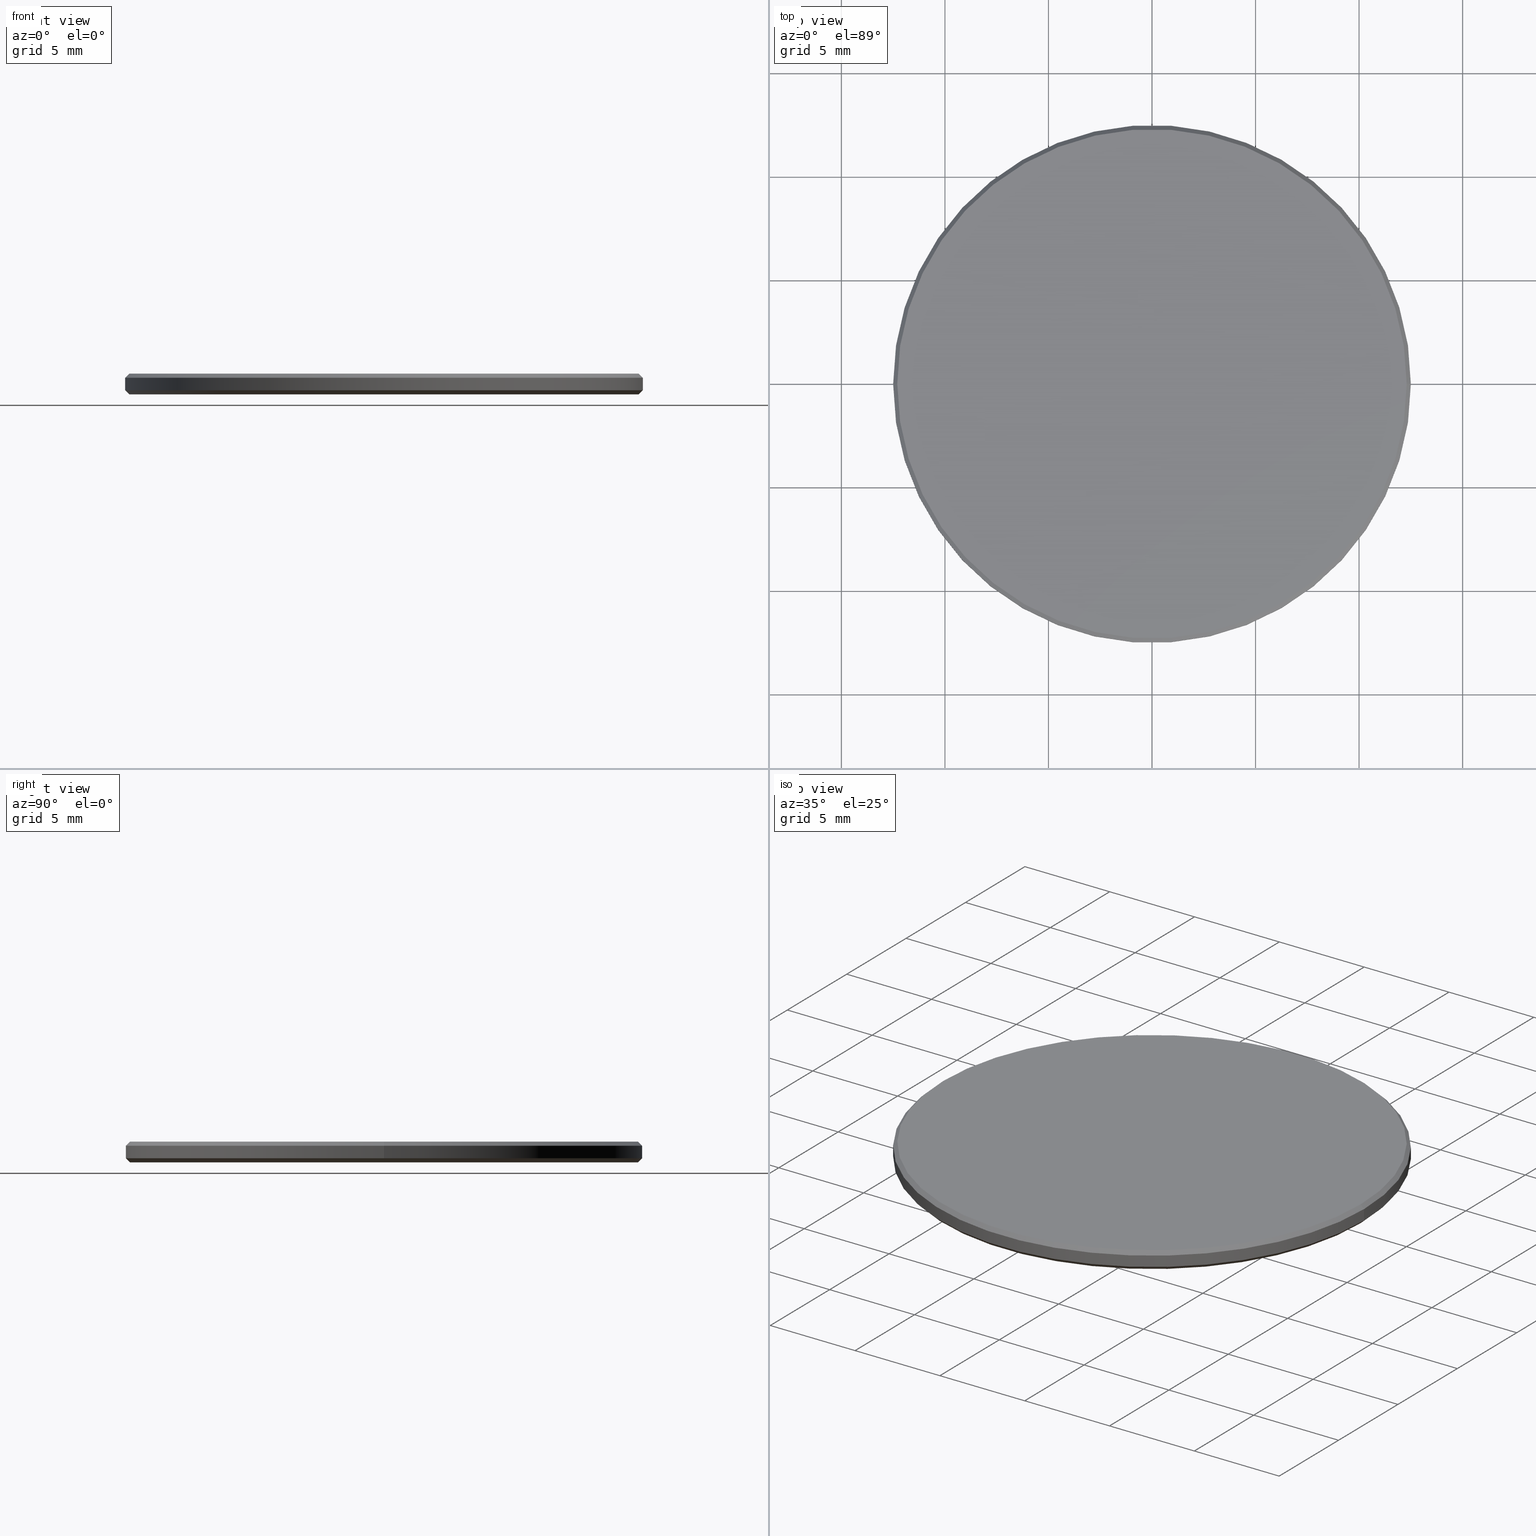
[diagram: canonical four-view strip — front | top / right | iso, engineering-drawing reading convention]
A machine part, canonical four-view strip (front | top / right | iso — engineering-drawing reading convention). The complete STEP part file that produces these views, byte-faithful:
ISO-10303-21;
HEADER;
FILE_DESCRIPTION (( 'STEP AP214' ),
    '1' );
FILE_NAME ('GNIF-140-3330-D25.STEP',
    '2024-07-19T14:32:43',
    ( '' ),
    ( '' ),
    'SwSTEP 2.0',
    'SolidWorks 2022',
    '' );
FILE_SCHEMA (( 'AUTOMOTIVE_DESIGN' ));
ENDSEC;

DATA;
#1 = CARTESIAN_POINT ( 'NONE',  ( 0.000000000000000000, 0.000000000000000000, 1.000000000000000000 ) ) ;
#2 = EDGE_CURVE ( 'NONE', #176, #126, #35, .T. ) ;
#3 = PLANE ( 'NONE',  #231 ) ;
#4 = AXIS2_PLACEMENT_3D ( 'NONE', #43, #168, #136 ) ;
#5 = CARTESIAN_POINT ( 'NONE',  ( 12.50000000000000000, 0.000000000000000000, 0.1999999999999987899 ) ) ;
#6 = ORIENTED_EDGE ( 'NONE', *, *, #207, .T. ) ;
#7 = CARTESIAN_POINT ( 'NONE',  ( -12.50000000000000000, 0.000000000000000000, 0.1999999999999987899 ) ) ;
#8 = ORIENTED_EDGE ( 'NONE', *, *, #204, .F. ) ;
#9 =( LENGTH_UNIT ( ) NAMED_UNIT ( * ) SI_UNIT ( .MILLI., .METRE. ) );
#10 = ORIENTED_EDGE ( 'NONE', *, *, #167, .T. ) ;
#11 = APPLICATION_PROTOCOL_DEFINITION ( 'draft international standard', 'automotive_design', 1998, #95 ) ;
#12 = EDGE_CURVE ( 'NONE', #68, #126, #14, .T. ) ;
#13 = CARTESIAN_POINT ( 'NONE',  ( 12.50000000000000000, 1.530808498934191521E-15, 0.1999999999999987899 ) ) ;
#14 = CIRCLE ( 'NONE', #166, 12.50000000000000000 ) ;
#15 =( GEOMETRIC_REPRESENTATION_CONTEXT ( 3 ) GLOBAL_UNCERTAINTY_ASSIGNED_CONTEXT ( ( #224 ) ) GLOBAL_UNIT_ASSIGNED_CONTEXT ( ( #9, #52, #200 ) ) REPRESENTATION_CONTEXT ( 'NONE', 'WORKASPACE' ) );
#16 = CARTESIAN_POINT ( 'NONE',  ( 0.000000000000000000, 0.000000000000000000, 0.1999999999999987899 ) ) ;
#17 = CARTESIAN_POINT ( 'NONE',  ( 0.000000000000000000, 0.000000000000000000, 0.1999999999999987899 ) ) ;
#18 = CIRCLE ( 'NONE', #163, 12.50000000000000000 ) ;
#19 =( LENGTH_UNIT ( ) NAMED_UNIT ( * ) SI_UNIT ( .MILLI., .METRE. ) );
#20 = PRODUCT_DEFINITION_CONTEXT ( 'detailed design', #95, 'design' ) ;
#21 = DIRECTION ( 'NONE',  ( 1.000000000000000000, 0.000000000000000000, 0.000000000000000000 ) ) ;
#22 = COLOUR_RGB ( '',1.000000000000000000, 1.000000000000000000, 1.000000000000000000 ) ;
#23 = DIRECTION ( 'NONE',  ( -0.000000000000000000, -0.000000000000000000, 1.000000000000000000 ) ) ;
#24 = ORIENTED_EDGE ( 'NONE', *, *, #134, .T. ) ;
#25 = CYLINDRICAL_SURFACE ( 'NONE', #170, 12.50000000000000000 ) ;
#26 = SURFACE_STYLE_USAGE ( .BOTH. , #184 ) ;
#27 = PRODUCT ( 'GNIF-140-3330-D25', 'GNIF-140-3330-D25', '', ( #87 ) ) ;
#28 = ORIENTED_EDGE ( 'NONE', *, *, #31, .T. ) ;
#29 = EDGE_LOOP ( 'NONE', ( #230, #216, #42, #38 ) ) ;
#30 = CARTESIAN_POINT ( 'NONE',  ( 0.000000000000000000, 0.000000000000000000, 0.000000000000000000 ) ) ;
#31 = EDGE_CURVE ( 'NONE', #173, #68, #236, .T. ) ;
#32 = DIRECTION ( 'NONE',  ( -0.7071067811865474617, 8.659560562354932858E-17, 0.7071067811865474617 ) ) ;
#33 = MECHANICAL_DESIGN_GEOMETRIC_PRESENTATION_REPRESENTATION (  '', ( #240 ), #83 ) ;
#34 = ADVANCED_BREP_SHAPE_REPRESENTATION ( 'GNIF-140-3330-D25', ( #64, #150 ), #57 ) ;
#35 = LINE ( 'NONE', #53, #101 ) ;
#36 = DIRECTION ( 'NONE',  ( -0.000000000000000000, -0.000000000000000000, 1.000000000000000000 ) ) ;
#37 = AXIS2_PLACEMENT_3D ( 'NONE', #164, #147, #132 ) ;
#38 = ORIENTED_EDGE ( 'NONE', *, *, #82, .F. ) ;
#39 = DIRECTION ( 'NONE',  ( 1.000000000000000000, 0.000000000000000000, -0.000000000000000000 ) ) ;
#40 = DIRECTION ( 'NONE',  ( 1.000000000000000000, 0.000000000000000000, 0.000000000000000000 ) ) ;
#41 = DIRECTION ( 'NONE',  ( -0.000000000000000000, -0.000000000000000000, -1.000000000000000000 ) ) ;
#42 = ORIENTED_EDGE ( 'NONE', *, *, #204, .T. ) ;
#43 = CARTESIAN_POINT ( 'NONE',  ( 0.000000000000000000, 0.000000000000000000, 0.8000000000000029310 ) ) ;
#44 = AXIS2_PLACEMENT_3D ( 'NONE', #102, #226, #61 ) ;
#45 = ORIENTED_EDGE ( 'NONE', *, *, #114, .F. ) ;
#46 = DIRECTION ( 'NONE',  ( -1.000000000000000000, 0.000000000000000000, 0.000000000000000000 ) ) ;
#47 = ADVANCED_FACE ( 'NONE', ( #218 ), #70, .T. ) ;
#48 = ORIENTED_EDGE ( 'NONE', *, *, #93, .T. ) ;
#49 = DIRECTION ( 'NONE',  ( 1.000000000000000000, 0.000000000000000000, 0.000000000000000000 ) ) ;
#50 =( LENGTH_UNIT ( ) NAMED_UNIT ( * ) SI_UNIT ( .MILLI., .METRE. ) );
#51 = PRESENTATION_STYLE_ASSIGNMENT (( #26 ) ) ;
#52 =( NAMED_UNIT ( * ) PLANE_ANGLE_UNIT ( ) SI_UNIT ( $, .RADIAN. ) );
#53 = CARTESIAN_POINT ( 'NONE',  ( -12.50000000000000000, 1.530808498934191521E-15, 0.1999999999999987899 ) ) ;
#54 = DIRECTION ( 'NONE',  ( 0.000000000000000000, 0.000000000000000000, 1.000000000000000000 ) ) ;
#55 = EDGE_CURVE ( 'NONE', #108, #176, #183, .T. ) ;
#56 = AXIS2_PLACEMENT_3D ( 'NONE', #214, #23, #172 ) ;
#57 =( GEOMETRIC_REPRESENTATION_CONTEXT ( 3 ) GLOBAL_UNCERTAINTY_ASSIGNED_CONTEXT ( ( #116 ) ) GLOBAL_UNIT_ASSIGNED_CONTEXT ( ( #19, #100, #139 ) ) REPRESENTATION_CONTEXT ( 'NONE', 'WORKASPACE' ) );
#58 = CARTESIAN_POINT ( 'NONE',  ( -12.30000000000000249, 1.518562030942718164E-15, 0.000000000000000000 ) ) ;
#59 = CARTESIAN_POINT ( 'NONE',  ( -12.29999999999999893, 0.000000000000000000, 1.000000000000000000 ) ) ;
#60 = ORIENTED_EDGE ( 'NONE', *, *, #181, .F. ) ;
#61 = DIRECTION ( 'NONE',  ( 1.000000000000000000, 0.000000000000000000, 0.000000000000000000 ) ) ;
#62 = AXIS2_PLACEMENT_3D ( 'NONE', #1, #41, #157 ) ;
#63 = ORIENTED_EDGE ( 'NONE', *, *, #73, .F. ) ;
#64 = MANIFOLD_SOLID_BREP ( '����1', #89 ) ;
#65 = DIRECTION ( 'NONE',  ( 0.000000000000000000, 0.000000000000000000, 1.000000000000000000 ) ) ;
#66 = ADVANCED_FACE ( 'NONE', ( #109 ), #112, .F. ) ;
#67 = ORIENTED_EDGE ( 'NONE', *, *, #93, .F. ) ;
#68 = VERTEX_POINT ( 'NONE', #13 ) ;
#69 = CIRCLE ( 'NONE', #44, 12.29999999999999893 ) ;
#70 = CONICAL_SURFACE ( 'NONE', #76, 12.29999999999999893, 0.7853981633974612686 ) ;
#71 = CIRCLE ( 'NONE', #37, 12.50000000000000000 ) ;
#72 = CARTESIAN_POINT ( 'NONE',  ( 0.000000000000000000, 0.000000000000000000, 1.000000000000000000 ) ) ;
#73 = EDGE_CURVE ( 'NONE', #161, #173, #91, .T. ) ;
#74 =( NAMED_UNIT ( * ) PLANE_ANGLE_UNIT ( ) SI_UNIT ( $, .RADIAN. ) );
#75 = ADVANCED_FACE ( 'NONE', ( #199 ), #90, .T. ) ;
#76 = AXIS2_PLACEMENT_3D ( 'NONE', #72, #205, #239 ) ;
#77 = DIRECTION ( 'NONE',  ( 0.7071067811865474617, 0.000000000000000000, 0.7071067811865474617 ) ) ;
#78 = CARTESIAN_POINT ( 'NONE',  ( 12.50000000000000000, 1.530808498934191521E-15, 0.8000000000000029310 ) ) ;
#79 = CARTESIAN_POINT ( 'NONE',  ( 0.000000000000000000, 0.000000000000000000, 1.000000000000000000 ) ) ;
#80 = CARTESIAN_POINT ( 'NONE',  ( 0.000000000000000000, 0.000000000000000000, 0.000000000000000000 ) ) ;
#81 = FACE_OUTER_BOUND ( 'NONE', #105, .T. ) ;
#82 = EDGE_CURVE ( 'NONE', #126, #68, #71, .T. ) ;
#83 =( GEOMETRIC_REPRESENTATION_CONTEXT ( 3 ) GLOBAL_UNCERTAINTY_ASSIGNED_CONTEXT ( ( #179 ) ) GLOBAL_UNIT_ASSIGNED_CONTEXT ( ( #50, #74, #185 ) ) REPRESENTATION_CONTEXT ( 'NONE', 'WORKASPACE' ) );
#84 = ORIENTED_EDGE ( 'NONE', *, *, #12, .T. ) ;
#85 = ORIENTED_EDGE ( 'NONE', *, *, #12, .F. ) ;
#86 = ORIENTED_EDGE ( 'NONE', *, *, #117, .T. ) ;
#87 = PRODUCT_CONTEXT ( 'NONE', #186, 'mechanical' ) ;
#88 = VECTOR ( 'NONE', #77, 1000.000000000000114 ) ;
#89 = CLOSED_SHELL ( 'NONE', ( #160, #47, #130, #215, #237, #66, #99, #75 ) ) ;
#90 = CONICAL_SURFACE ( 'NONE', #171, 12.50000000000000000, 0.7853981633974482790 ) ;
#91 = LINE ( 'NONE', #222, #145 ) ;
#92 = DIRECTION ( 'NONE',  ( -0.000000000000000000, -0.000000000000000000, 1.000000000000000000 ) ) ;
#93 = EDGE_CURVE ( 'NONE', #195, #161, #206, .T. ) ;
#94 = CARTESIAN_POINT ( 'NONE',  ( 12.50000000000000000, 1.530808498934191521E-15, 1.000000000000000000 ) ) ;
#95 = APPLICATION_CONTEXT ( 'automotive_design' ) ;
#96 = DIRECTION ( 'NONE',  ( 1.000000000000000000, 0.000000000000000000, 0.000000000000000000 ) ) ;
#97 = EDGE_LOOP ( 'NONE', ( #120, #6 ) ) ;
#98 = DIRECTION ( 'NONE',  ( 0.000000000000000000, 0.000000000000000000, -1.000000000000000000 ) ) ;
#99 = ADVANCED_FACE ( 'NONE', ( #209 ), #127, .T. ) ;
#100 =( NAMED_UNIT ( * ) PLANE_ANGLE_UNIT ( ) SI_UNIT ( $, .RADIAN. ) );
#101 = VECTOR ( 'NONE', #32, 1000.000000000000114 ) ;
#102 = CARTESIAN_POINT ( 'NONE',  ( 0.000000000000000000, 0.000000000000000000, 1.000000000000000000 ) ) ;
#103 = ORIENTED_EDGE ( 'NONE', *, *, #207, .F. ) ;
#104 = CARTESIAN_POINT ( 'NONE',  ( -12.29999999999999893, 0.000000000000000000, 1.000000000000000000 ) ) ;
#105 = EDGE_LOOP ( 'NONE', ( #180, #86, #123, #140 ) ) ;
#106 = LINE ( 'NONE', #5, #88 ) ;
#107 = ORIENTED_EDGE ( 'NONE', *, *, #2, .T. ) ;
#108 = VERTEX_POINT ( 'NONE', #152 ) ;
#109 = FACE_OUTER_BOUND ( 'NONE', #97, .T. ) ;
#110 = AXIS2_PLACEMENT_3D ( 'NONE', #149, #202, #128 ) ;
#111 = COLOUR_RGB ( '',1.000000000000000000, 1.000000000000000000, 1.000000000000000000 ) ;
#112 = PLANE ( 'NONE',  #221 ) ;
#113 = FILL_AREA_STYLE ('',( #115 ) ) ;
#114 = EDGE_CURVE ( 'NONE', #228, #126, #196, .T. ) ;
#115 = FILL_AREA_STYLE_COLOUR ( '', #22 ) ;
#116 = UNCERTAINTY_MEASURE_WITH_UNIT (LENGTH_MEASURE( 1.000000000000000082E-05 ), #19, 'distance_accuracy_value', 'NONE');
#117 = EDGE_CURVE ( 'NONE', #173, #228, #238, .T. ) ;
#118 = DIRECTION ( 'NONE',  ( 0.000000000000000000, 0.000000000000000000, -1.000000000000000000 ) ) ;
#119 = CARTESIAN_POINT ( 'NONE',  ( 0.000000000000000000, 0.000000000000000000, 1.000000000000000000 ) ) ;
#120 = ORIENTED_EDGE ( 'NONE', *, *, #55, .T. ) ;
#121 = MECHANICAL_DESIGN_GEOMETRIC_PRESENTATION_REPRESENTATION (  '', ( #193 ), #15 ) ;
#122 = FACE_OUTER_BOUND ( 'NONE', #137, .T. ) ;
#123 = ORIENTED_EDGE ( 'NONE', *, *, #114, .T. ) ;
#124 = CARTESIAN_POINT ( 'NONE',  ( 0.000000000000000000, 0.000000000000000000, 0.8000000000000029310 ) ) ;
#125 = EDGE_LOOP ( 'NONE', ( #103, #107, #85, #8 ) ) ;
#126 = VERTEX_POINT ( 'NONE', #7 ) ;
#127 = CONICAL_SURFACE ( 'NONE', #189, 12.29999999999999893, 0.7853981633974612686 ) ;
#128 = DIRECTION ( 'NONE',  ( 1.000000000000000000, 0.000000000000000000, 0.000000000000000000 ) ) ;
#129 = DIRECTION ( 'NONE',  ( 0.7071067811865566766, 8.659560562355045024E-17, -0.7071067811865383579 ) ) ;
#130 = ADVANCED_FACE ( 'NONE', ( #122 ), #25, .T. ) ;
#131 = DIRECTION ( 'NONE',  ( -0.000000000000000000, -0.000000000000000000, -1.000000000000000000 ) ) ;
#132 = DIRECTION ( 'NONE',  ( 1.000000000000000000, 0.000000000000000000, 0.000000000000000000 ) ) ;
#133 = CARTESIAN_POINT ( 'NONE',  ( -12.50000000000000000, 0.000000000000000000, 0.8000000000000029310 ) ) ;
#134 = EDGE_CURVE ( 'NONE', #161, #195, #69, .T. ) ;
#135 = FACE_OUTER_BOUND ( 'NONE', #125, .T. ) ;
#136 = DIRECTION ( 'NONE',  ( 1.000000000000000000, 0.000000000000000000, 0.000000000000000000 ) ) ;
#137 = EDGE_LOOP ( 'NONE', ( #10, #28, #84, #45 ) ) ;
#138 = PRODUCT_DEFINITION ( 'δ֪', '', #148, #20 ) ;
#139 =( NAMED_UNIT ( * ) SI_UNIT ( $, .STERADIAN. ) SOLID_ANGLE_UNIT ( ) );
#140 = ORIENTED_EDGE ( 'NONE', *, *, #82, .T. ) ;
#141 = PRESENTATION_LAYER_ASSIGNMENT (  '', '', ( #240 ) ) ;
#142 = CARTESIAN_POINT ( 'NONE',  ( 0.000000000000000000, 0.000000000000000000, 1.000000000000000000 ) ) ;
#143 = FILL_AREA_STYLE_COLOUR ( '', #111 ) ;
#144 = SURFACE_STYLE_FILL_AREA ( #217 ) ;
#145 = VECTOR ( 'NONE', #129, 1000.000000000000000 ) ;
#146 = SURFACE_STYLE_USAGE ( .BOTH. , #165 ) ;
#147 = DIRECTION ( 'NONE',  ( -0.000000000000000000, -0.000000000000000000, 1.000000000000000000 ) ) ;
#148 = PRODUCT_DEFINITION_FORMATION_WITH_SPECIFIED_SOURCE ( '�κ�', '', #27, .NOT_KNOWN. ) ;
#149 = CARTESIAN_POINT ( 'NONE',  ( 0.000000000000000000, 0.000000000000000000, 0.000000000000000000 ) ) ;
#150 = AXIS2_PLACEMENT_3D ( 'NONE', #175, #65, #49 ) ;
#151 = VECTOR ( 'NONE', #155, 1000.000000000000000 ) ;
#152 = CARTESIAN_POINT ( 'NONE',  ( 12.30000000000000249, 0.000000000000000000, 0.000000000000000000 ) ) ;
#153 = CARTESIAN_POINT ( 'NONE',  ( 12.29999999999999893, 1.518562030942717967E-15, 1.000000000000000000 ) ) ;
#154 = DIRECTION ( 'NONE',  ( -0.000000000000000000, -0.000000000000000000, -1.000000000000000000 ) ) ;
#155 = DIRECTION ( 'NONE',  ( -0.000000000000000000, -0.000000000000000000, -1.000000000000000000 ) ) ;
#156 = ORIENTED_EDGE ( 'NONE', *, *, #73, .T. ) ;
#157 = DIRECTION ( 'NONE',  ( -1.000000000000000000, 0.000000000000000000, 0.000000000000000000 ) ) ;
#158 = CIRCLE ( 'NONE', #191, 12.30000000000000249 ) ;
#159 = EDGE_LOOP ( 'NONE', ( #232, #156, #162, #60 ) ) ;
#160 = ADVANCED_FACE ( 'NONE', ( #135 ), #212, .T. ) ;
#161 = VERTEX_POINT ( 'NONE', #153 ) ;
#162 = ORIENTED_EDGE ( 'NONE', *, *, #167, .F. ) ;
#163 = AXIS2_PLACEMENT_3D ( 'NONE', #124, #98, #21 ) ;
#164 = CARTESIAN_POINT ( 'NONE',  ( 0.000000000000000000, 0.000000000000000000, 0.1999999999999987899 ) ) ;
#165 = SURFACE_SIDE_STYLE ('',( #188 ) ) ;
#166 = AXIS2_PLACEMENT_3D ( 'NONE', #17, #36, #96 ) ;
#167 = EDGE_CURVE ( 'NONE', #228, #173, #18, .T. ) ;
#168 = DIRECTION ( 'NONE',  ( 0.000000000000000000, 0.000000000000000000, -1.000000000000000000 ) ) ;
#169 = CYLINDRICAL_SURFACE ( 'NONE', #62, 12.50000000000000000 ) ;
#170 = AXIS2_PLACEMENT_3D ( 'NONE', #79, #154, #46 ) ;
#171 = AXIS2_PLACEMENT_3D ( 'NONE', #16, #92, #203 ) ;
#172 = DIRECTION ( 'NONE',  ( 1.000000000000000000, 0.000000000000000000, 0.000000000000000000 ) ) ;
#173 = VERTEX_POINT ( 'NONE', #78 ) ;
#174 = DIRECTION ( 'NONE',  ( -1.000000000000000000, 0.000000000000000000, 0.000000000000000000 ) ) ;
#175 = CARTESIAN_POINT ( 'NONE',  ( 0.000000000000000000, 0.000000000000000000, 0.000000000000000000 ) ) ;
#176 = VERTEX_POINT ( 'NONE', #58 ) ;
#177 = PRODUCT_DEFINITION_SHAPE ( 'NONE', 'NONE',  #138 ) ;
#178 = EDGE_LOOP ( 'NONE', ( #63, #67, #211, #198 ) ) ;
#179 = UNCERTAINTY_MEASURE_WITH_UNIT (LENGTH_MEASURE( 1.000000000000000082E-05 ), #50, 'distance_accuracy_value', 'NONE');
#180 = ORIENTED_EDGE ( 'NONE', *, *, #31, .F. ) ;
#181 = EDGE_CURVE ( 'NONE', #195, #228, #194, .T. ) ;
#182 = DIRECTION ( 'NONE',  ( 1.000000000000000000, 0.000000000000000000, -0.000000000000000000 ) ) ;
#183 = CIRCLE ( 'NONE', #110, 12.30000000000000249 ) ;
#184 = SURFACE_SIDE_STYLE ('',( #144 ) ) ;
#185 =( NAMED_UNIT ( * ) SI_UNIT ( $, .STERADIAN. ) SOLID_ANGLE_UNIT ( ) );
#186 = APPLICATION_CONTEXT ( 'automotive_design' ) ;
#187 = DIRECTION ( 'NONE',  ( 1.000000000000000000, 0.000000000000000000, 0.000000000000000000 ) ) ;
#188 = SURFACE_STYLE_FILL_AREA ( #113 ) ;
#189 = AXIS2_PLACEMENT_3D ( 'NONE', #142, #118, #174 ) ;
#190 = DIRECTION ( 'NONE',  ( 0.000000000000000000, 0.000000000000000000, 1.000000000000000000 ) ) ;
#191 = AXIS2_PLACEMENT_3D ( 'NONE', #80, #225, #40 ) ;
#192 = VECTOR ( 'NONE', #210, 1000.000000000000000 ) ;
#193 = STYLED_ITEM ( 'NONE', ( #51 ), #34 ) ;
#194 = LINE ( 'NONE', #104, #192 ) ;
#195 = VERTEX_POINT ( 'NONE', #59 ) ;
#196 = LINE ( 'NONE', #229, #151 ) ;
#197 = PRODUCT_RELATED_PRODUCT_CATEGORY ( 'part', '', ( #27 ) ) ;
#198 = ORIENTED_EDGE ( 'NONE', *, *, #117, .F. ) ;
#199 = FACE_OUTER_BOUND ( 'NONE', #29, .T. ) ;
#200 =( NAMED_UNIT ( * ) SI_UNIT ( $, .STERADIAN. ) SOLID_ANGLE_UNIT ( ) );
#201 = PRESENTATION_LAYER_ASSIGNMENT (  '', '', ( #193 ) ) ;
#202 = DIRECTION ( 'NONE',  ( -0.000000000000000000, -0.000000000000000000, -1.000000000000000000 ) ) ;
#203 = DIRECTION ( 'NONE',  ( 1.000000000000000000, 0.000000000000000000, 0.000000000000000000 ) ) ;
#204 = EDGE_CURVE ( 'NONE', #108, #68, #106, .T. ) ;
#205 = DIRECTION ( 'NONE',  ( 0.000000000000000000, 0.000000000000000000, -1.000000000000000000 ) ) ;
#206 = CIRCLE ( 'NONE', #235, 12.29999999999999893 ) ;
#207 = EDGE_CURVE ( 'NONE', #176, #108, #158, .T. ) ;
#208 = DIRECTION ( 'NONE',  ( 0.000000000000000000, 0.000000000000000000, 1.000000000000000000 ) ) ;
#209 = FACE_OUTER_BOUND ( 'NONE', #178, .T. ) ;
#210 = DIRECTION ( 'NONE',  ( -0.7071067811865566766, 0.000000000000000000, -0.7071067811865383579 ) ) ;
#211 = ORIENTED_EDGE ( 'NONE', *, *, #181, .T. ) ;
#212 = CONICAL_SURFACE ( 'NONE', #56, 12.50000000000000000, 0.7853981633974482790 ) ;
#213 = EDGE_LOOP ( 'NONE', ( #48, #24 ) ) ;
#214 = CARTESIAN_POINT ( 'NONE',  ( 0.000000000000000000, 0.000000000000000000, 0.1999999999999987899 ) ) ;
#215 = ADVANCED_FACE ( 'NONE', ( #81 ), #169, .T. ) ;
#216 = ORIENTED_EDGE ( 'NONE', *, *, #55, .F. ) ;
#217 = FILL_AREA_STYLE ('',( #143 ) ) ;
#218 = FACE_OUTER_BOUND ( 'NONE', #159, .T. ) ;
#219 = APPLICATION_PROTOCOL_DEFINITION ( 'draft international standard', 'automotive_design', 1998, #186 ) ;
#220 = CARTESIAN_POINT ( 'NONE',  ( 0.000000000000000000, 0.000000000000000000, 1.000000000000000000 ) ) ;
#221 = AXIS2_PLACEMENT_3D ( 'NONE', #30, #54, #182 ) ;
#222 = CARTESIAN_POINT ( 'NONE',  ( 12.29999999999999893, 1.506315562951244216E-15, 1.000000000000000000 ) ) ;
#223 = PRESENTATION_STYLE_ASSIGNMENT (( #146 ) ) ;
#224 = UNCERTAINTY_MEASURE_WITH_UNIT (LENGTH_MEASURE( 1.000000000000000082E-05 ), #9, 'distance_accuracy_value', 'NONE');
#225 = DIRECTION ( 'NONE',  ( -0.000000000000000000, -0.000000000000000000, -1.000000000000000000 ) ) ;
#226 = DIRECTION ( 'NONE',  ( 0.000000000000000000, 0.000000000000000000, 1.000000000000000000 ) ) ;
#227 = FACE_OUTER_BOUND ( 'NONE', #213, .T. ) ;
#228 = VERTEX_POINT ( 'NONE', #133 ) ;
#229 = CARTESIAN_POINT ( 'NONE',  ( -12.50000000000000000, 0.000000000000000000, 1.000000000000000000 ) ) ;
#230 = ORIENTED_EDGE ( 'NONE', *, *, #2, .F. ) ;
#231 = AXIS2_PLACEMENT_3D ( 'NONE', #119, #208, #39 ) ;
#232 = ORIENTED_EDGE ( 'NONE', *, *, #134, .F. ) ;
#233 = SHAPE_DEFINITION_REPRESENTATION ( #177, #34 ) ;
#234 = VECTOR ( 'NONE', #131, 1000.000000000000000 ) ;
#235 = AXIS2_PLACEMENT_3D ( 'NONE', #220, #190, #187 ) ;
#236 = LINE ( 'NONE', #94, #234 ) ;
#237 = ADVANCED_FACE ( 'NONE', ( #227 ), #3, .T. ) ;
#238 = CIRCLE ( 'NONE', #4, 12.50000000000000000 ) ;
#239 = DIRECTION ( 'NONE',  ( -1.000000000000000000, 0.000000000000000000, 0.000000000000000000 ) ) ;
#240 = STYLED_ITEM ( 'NONE', ( #223 ), #64 ) ;
ENDSEC;
END-ISO-10303-21;
